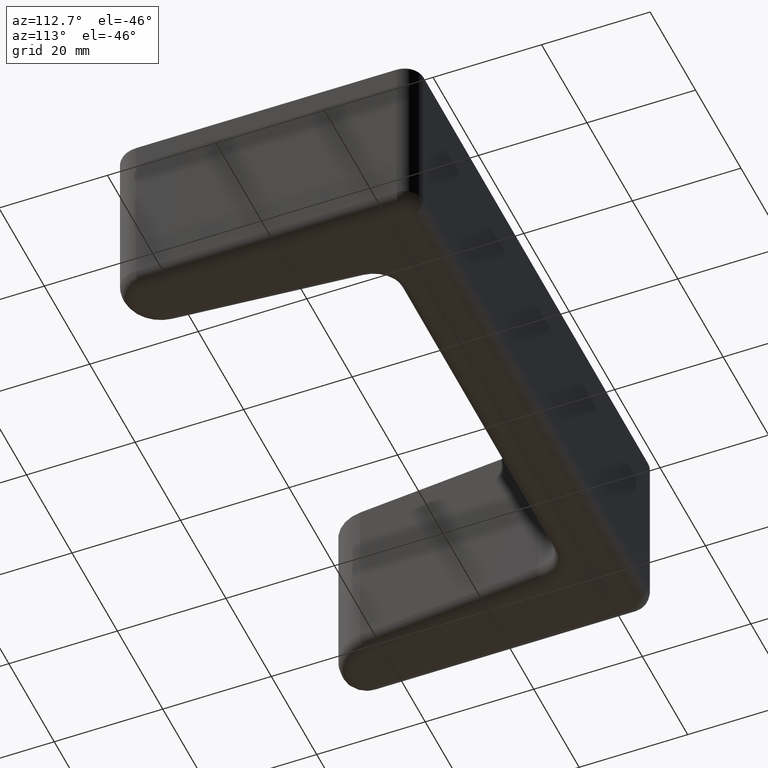
[diagram: clean part render]
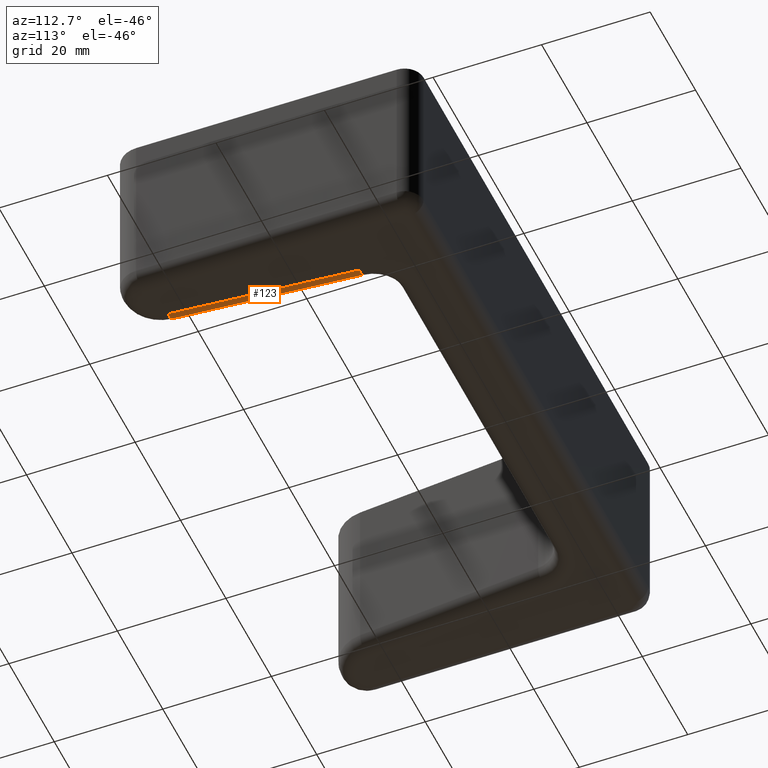
[diagram: same view with one face highlighted and labeled with its STEP entity id]
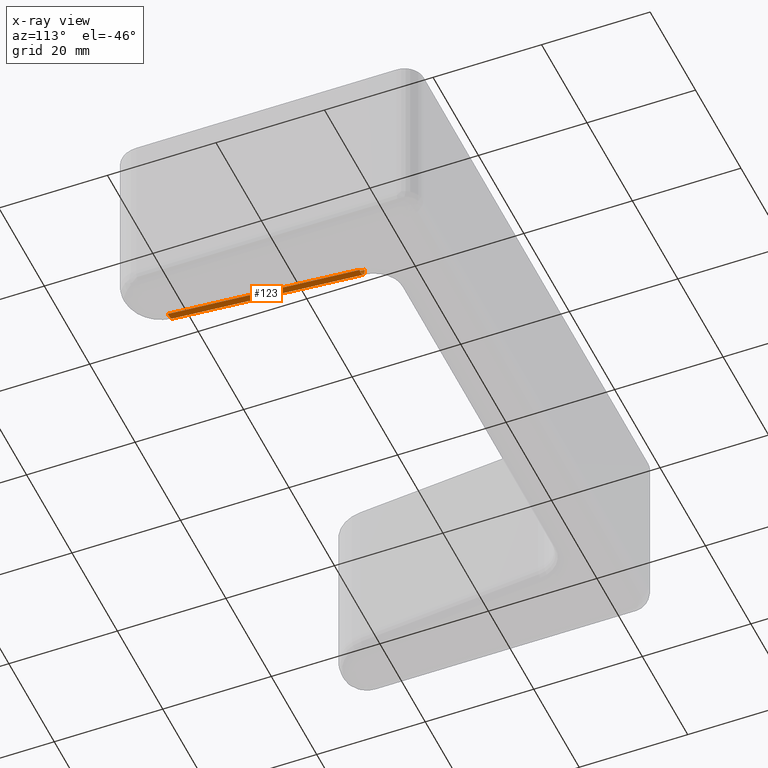
[diagram: x-ray of the same camera — body ghosted, the highlighted face saturated]
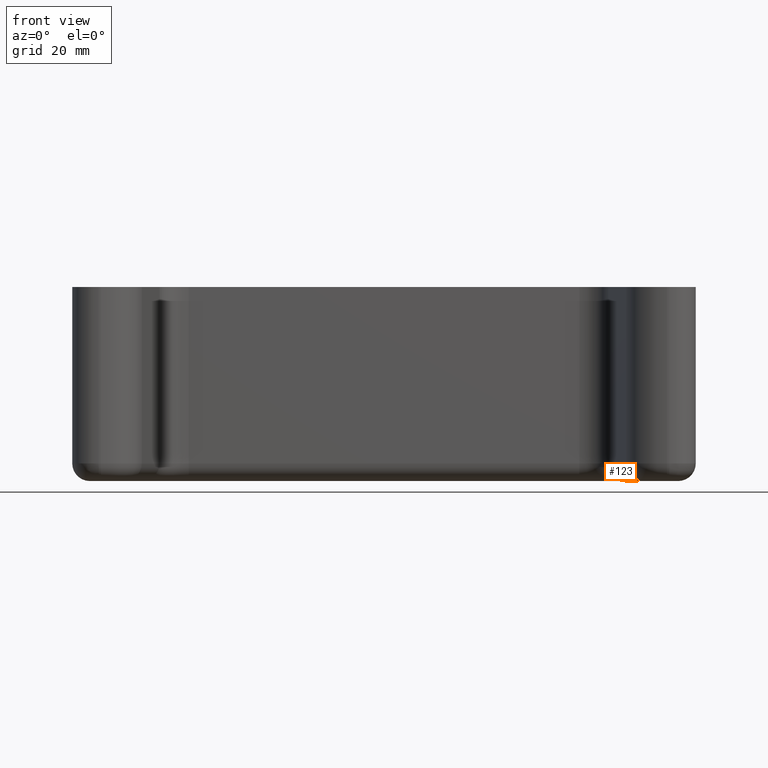
[diagram: same view with one face highlighted and labeled with its STEP entity id]
A machine part, auxiliary view. The second image highlights one B-rep face of the part: STEP entity #123.
The next image is the same camera in x-ray: the body ghosted, the highlighted face saturated — about 0% of this face is hidden behind the body in this view.
A second angle (front view) of the same face is appended — the face is thin or edge-on in the first view.
In plain terms, the highlighted cylindrical surface (edge-blend (fillet) strip) has radius 3 mm, axis along (-0.0872, 0.9962, -0).
Its self-contained STEP definition (entity closure, byte-faithful):
#123 = ADVANCED_FACE( '', ( #224 ), #225, .T. );
#224 = FACE_OUTER_BOUND( '', #387, .T. );
#225 = CYLINDRICAL_SURFACE( '', #388, 3.00000000000000 );
#387 = EDGE_LOOP( '', ( #769, #770, #771, #772 ) );
#388 = AXIS2_PLACEMENT_3D( '', #773, #774, #775 );
#769 = ORIENTED_EDGE( '', *, *, #908, .T. );
#770 = ORIENTED_EDGE( '', *, *, #901, .T. );
#771 = ORIENTED_EDGE( '', *, *, #917, .F. );
#772 = ORIENTED_EDGE( '', *, *, #912, .T. );
#773 = CARTESIAN_POINT( '', ( 41.3412493932810, -11.7497628911804, -29.9998116069360 ) );
#774 = DIRECTION( '', ( -0.0871557427476584, 0.996194698091746, -9.25185853854297E-017 ) );
#775 = DIRECTION( '', ( -0.704416026402759, -0.0616284167162196, -0.707106781186547 ) );
#901 = EDGE_CURVE( '', #1104, #995, #1105, .T. );
#908 = EDGE_CURVE( '', #1114, #1104, #1115, .T. );
#912 = EDGE_CURVE( '', #1119, #1114, #1120, .T. );
#917 = EDGE_CURVE( '', #1119, #995, #1125, .T. );
#995 = VERTEX_POINT( '', #1225 );
#1104 = VERTEX_POINT( '', #1374 );
#1105 = LINE( '', #1375, #1376 );
#1114 = VERTEX_POINT( '', #1389 );
#1115 = CIRCLE( '', #1390, 3.00000000000000 );
#1119 = VERTEX_POINT( '', #1395 );
#1120 = LINE( '', #1396, #1397 );
#1125 = CIRCLE( '', #1405, 3.00000000000000 );
#1225 = CARTESIAN_POINT( '', ( 38.1823240983193, -10.0642212862618, -29.9998116069360 ) );
#1374 = CARTESIAN_POINT( '', ( 41.1609516680941, -44.1100901992336, -29.9998116069360 ) );
#1375 = CARTESIAN_POINT( '', ( 38.3526652990058, -12.0112301194234, -29.9998116069360 ) );
#1376 = VECTOR( '', #1615, 1000.00000000000 );
#1389 = CARTESIAN_POINT( '', ( 44.1495357623693, -43.8486229709906, -32.9998116069360 ) );
#1390 = AXIS2_PLACEMENT_3D( '', #1626, #1627, #1628 );
#1395 = CARTESIAN_POINT( '', ( 41.1709081925946, -9.80275405801880, -32.9998116069360 ) );
#1396 = CARTESIAN_POINT( '', ( 41.3412493932810, -11.7497628911804, -32.9998116069360 ) );
#1397 = VECTOR( '', #1636, 1000.00000000000 );
#1405 = AXIS2_PLACEMENT_3D( '', #1643, #1644, #1645 );
#1615 = DIRECTION( '', ( -0.0871557427476584, 0.996194698091746, -1.11321488058643E-016 ) );
#1626 = CARTESIAN_POINT( '', ( 44.1495357623693, -43.8486229709906, -29.9998116069360 ) );
#1627 = DIRECTION( '', ( -0.0871557427476569, 0.996194698091746, -1.11321488058643E-016 ) );
#1628 = DIRECTION( '', ( -1.22460635382238E-016, -1.22460635382238E-016, -1.00000000000000 ) );
#1636 = DIRECTION( '', ( 0.0871557427476584, -0.996194698091746, 1.11321488058643E-016 ) );
#1643 = CARTESIAN_POINT( '', ( 41.1709081925946, -9.80275405801880, -29.9998116069360 ) );
#1644 = DIRECTION( '', ( -0.0871557427476585, 0.996194698091746, -1.11321488058643E-016 ) );
#1645 = DIRECTION( '', ( -1.22460635382238E-016, -1.22460635382238E-016, -1.00000000000000 ) );